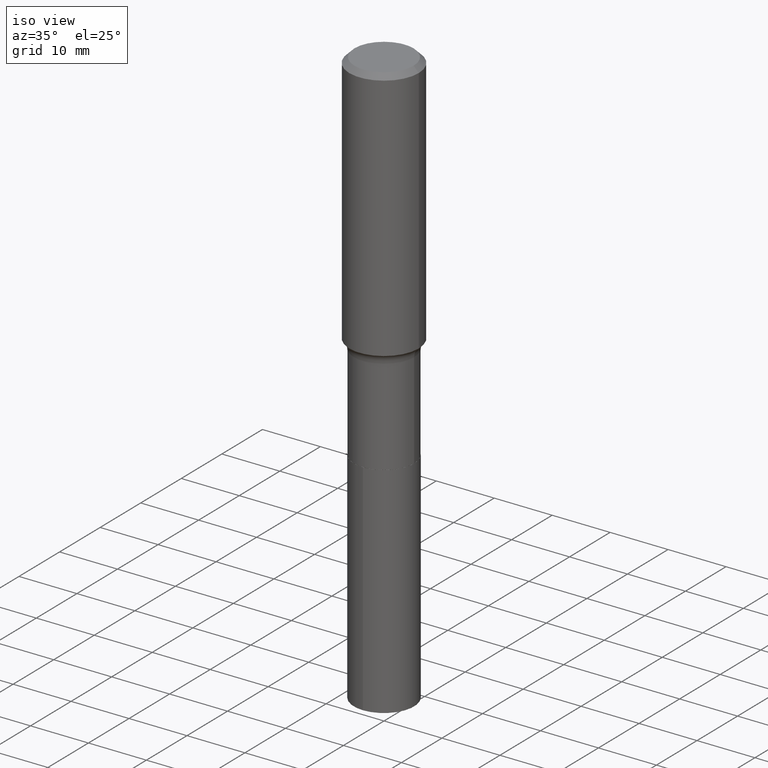
[diagram: clean part render]
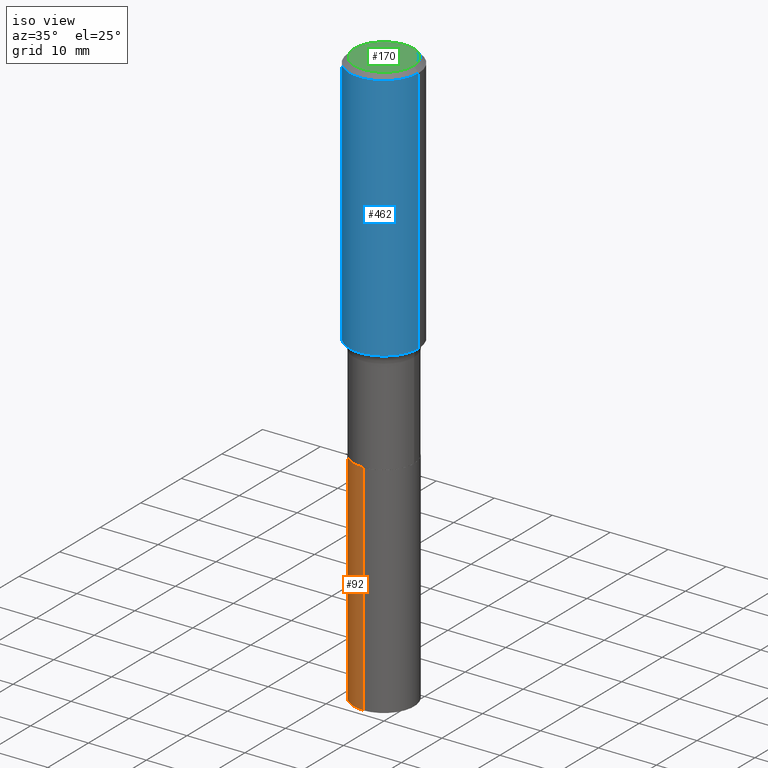
[diagram: same view with three faces highlighted in distinct colors, each labeled with its STEP entity id]
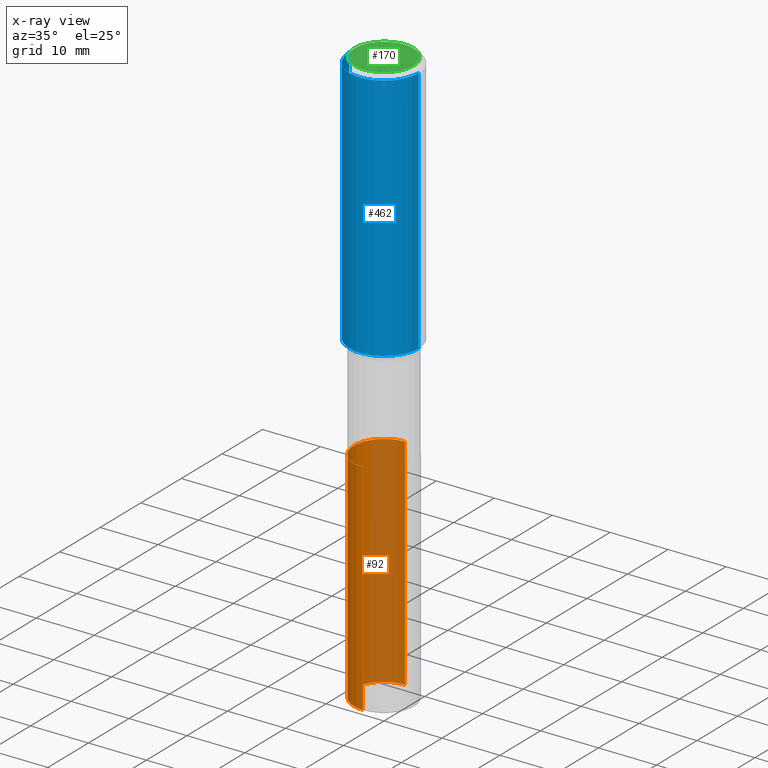
[diagram: x-ray of the same camera — body ghosted, the three highlighted faces saturated]
A machine part, iso view with three faces highlighted in distinct colors.
The next image is the same camera in x-ray (body ghosted, the three faces saturated) — at least one of them is partly hidden behind the body in this view.
Their STEP definitions:

[orange] entity #92 — the highlighted cylindrical surface (partial cylindrical patch) has radius 5.2006 mm, axis along (-0, 0, 1).
#10 = CYLINDRICAL_SURFACE ( 'NONE', #286, 0.2047499999999999876 ) ;
#92 = ADVANCED_FACE ( 'NONE', ( #193 ), #10, .T. ) ;
#108 = LINE ( 'NONE', #482, #192 ) ;
#109 = EDGE_LOOP ( 'NONE', ( #244, #119, #282, #407 ) ) ;
#119 = ORIENTED_EDGE ( 'NONE', *, *, #264, .T. ) ;
#123 = VERTEX_POINT ( 'NONE', #465 ) ;
#139 = LINE ( 'NONE', #201, #471 ) ;
#152 = DIRECTION ( 'NONE',  ( -2.445425754346182208E-29, 3.491542991526886614E-15, 1.000000000000000000 ) ) ;
#153 = CARTESIAN_POINT ( 'NONE',  ( 5.969144809017299038E-29, -8.522356799982232966E-15, -2.440900000000000070 ) ) ;
#154 = DIRECTION ( 'NONE',  ( -2.445425754346182208E-29, 3.491542991526886220E-15, 1.000000000000000000 ) ) ;
#186 = DIRECTION ( 'NONE',  ( -2.445425754346182208E-29, 3.491542991526886614E-15, 1.000000000000000000 ) ) ;
#192 = VECTOR ( 'NONE', #268, 39.37007874015748143 ) ;
#193 = FACE_OUTER_BOUND ( 'NONE', #109, .T. ) ;
#201 = CARTESIAN_POINT ( 'NONE',  ( 1.454836251468864404E-15, 0.2047499999999914388, -2.440900000000000514 ) ) ;
#244 = ORIENTED_EDGE ( 'NONE', *, *, #485, .F. ) ;
#251 = CARTESIAN_POINT ( 'NONE',  ( 5.969144809017299038E-29, -8.522356799982232966E-15, -2.440900000000000070 ) ) ;
#260 = CARTESIAN_POINT ( 'NONE',  ( -1.429761608256166261E-15, -0.2047500000000136156, -3.932975630260252320 ) ) ;
#264 = EDGE_CURVE ( 'NONE', #450, #427, #411, .T. ) ;
#268 = DIRECTION ( 'NONE',  ( -2.445425754346182208E-29, 3.491542991526886220E-15, 1.000000000000000000 ) ) ;
#276 = DIRECTION ( 'NONE',  ( -6.982962677686265922E-15, -1.000000000000000000, 2.668471788683041116E-15 ) ) ;
#279 = CARTESIAN_POINT ( 'NONE',  ( -1.429761608256203140E-15, -0.2047500000000085085, -2.440899999999999181 ) ) ;
#282 = ORIENTED_EDGE ( 'NONE', *, *, #474, .T. ) ;
#286 = AXIS2_PLACEMENT_3D ( 'NONE', #153, #304, #419 ) ;
#304 = DIRECTION ( 'NONE',  ( -2.445425754346182208E-29, 3.491542991526886614E-15, 1.000000000000000000 ) ) ;
#340 = CARTESIAN_POINT ( 'NONE',  ( 9.617904982688033762E-29, -1.373200300964548210E-14, -3.932975630260252764 ) ) ;
#370 = VERTEX_POINT ( 'NONE', #279 ) ;
#407 = ORIENTED_EDGE ( 'NONE', *, *, #423, .F. ) ;
#411 = CIRCLE ( 'NONE', #459, 0.2047499999999999876 ) ;
#419 = DIRECTION ( 'NONE',  ( -6.982962677686265922E-15, -1.000000000000000000, 4.002707683024561674E-15 ) ) ;
#423 = EDGE_CURVE ( 'NONE', #123, #370, #446, .T. ) ;
#427 = VERTEX_POINT ( 'NONE', #260 ) ;
#446 = CIRCLE ( 'NONE', #491, 0.2047499999999999876 ) ;
#450 = VERTEX_POINT ( 'NONE', #481 ) ;
#459 = AXIS2_PLACEMENT_3D ( 'NONE', #340, #152, #276 ) ;
#465 = CARTESIAN_POINT ( 'NONE',  ( 1.454836251468901086E-15, 0.2047499999999914388, -2.440900000000000514 ) ) ;
#471 = VECTOR ( 'NONE', #154, 39.37007874015748143 ) ;
#474 = EDGE_CURVE ( 'NONE', #427, #370, #108, .T. ) ;
#476 = DIRECTION ( 'NONE',  ( -6.982962677686265922E-15, -1.000000000000000000, 4.002707683024561674E-15 ) ) ;
#481 = CARTESIAN_POINT ( 'NONE',  ( 1.454836251468900297E-15, 0.2047499999999861930, -3.932975630260253208 ) ) ;
#482 = CARTESIAN_POINT ( 'NONE',  ( -1.429761608256203140E-15, -0.2047500000000085085, -2.440899999999999181 ) ) ;
#485 = EDGE_CURVE ( 'NONE', #450, #123, #139, .T. ) ;
#491 = AXIS2_PLACEMENT_3D ( 'NONE', #251, #186, #476 ) ;

[blue] entity #462 — the highlighted cylindrical surface (partial cylindrical patch) has radius 5.9995 mm, axis along (-0, 0, 1).
#11 = DIRECTION ( 'NONE',  ( -2.445468806185136597E-29, 3.491481338843145583E-15, 1.000000000000000000 ) ) ;
#13 = CIRCLE ( 'NONE', #124, 0.2362000000000002153 ) ;
#15 = EDGE_CURVE ( 'NONE', #164, #171, #13, .T. ) ;
#21 = EDGE_CURVE ( 'NONE', #171, #365, #413, .T. ) ;
#48 = CARTESIAN_POINT ( 'NONE',  ( -0.2362000000000001043, 1.678301941865357380E-15, -1.161852468318209317E-29 ) ) ;
#61 = ORIENTED_EDGE ( 'NONE', *, *, #21, .T. ) ;
#63 = VECTOR ( 'NONE', #292, 39.37007874015748143 ) ;
#66 = DIRECTION ( 'NONE',  ( 1.000000000000000000, -6.982962677686266711E-15, 0.000000000000000000 ) ) ;
#72 = CARTESIAN_POINT ( 'NONE',  ( 8.664295980313995239E-31, -1.237031838352134572E-16, -0.03543000000000023214 ) ) ;
#79 = CARTESIAN_POINT ( 'NONE',  ( 0.2362000000000002153, -7.676766387154458967E-15, -1.726313280162641517 ) ) ;
#86 = ORIENTED_EDGE ( 'NONE', *, *, #387, .F. ) ;
#100 = DIRECTION ( 'NONE',  ( 1.000000000000000000, -6.982962677686266711E-15, 4.876176775795935793E-29 ) ) ;
#124 = AXIS2_PLACEMENT_3D ( 'NONE', #331, #11, #66 ) ;
#164 = VERTEX_POINT ( 'NONE', #315 ) ;
#171 = VERTEX_POINT ( 'NONE', #79 ) ;
#182 = CARTESIAN_POINT ( 'NONE',  ( 0.2362000000000001043, -1.649375784469496920E-15, 1.151752954443000508E-29 ) ) ;
#240 = EDGE_LOOP ( 'NONE', ( #376, #281, #61, #86 ) ) ;
#281 = ORIENTED_EDGE ( 'NONE', *, *, #15, .T. ) ;
#287 = AXIS2_PLACEMENT_3D ( 'NONE', #454, #379, #100 ) ;
#292 = DIRECTION ( 'NONE',  ( -2.445468806185136877E-29, 3.491481338843145188E-15, 1.000000000000000000 ) ) ;
#298 = AXIS2_PLACEMENT_3D ( 'NONE', #72, #382, #343 ) ;
#303 = CYLINDRICAL_SURFACE ( 'NONE', #287, 0.2362000000000001043 ) ;
#315 = CARTESIAN_POINT ( 'NONE',  ( -0.2362000000000002153, -4.349088660819602892E-15, -1.726313280162641517 ) ) ;
#326 = EDGE_CURVE ( 'NONE', #164, #420, #391, .T. ) ;
#331 = CARTESIAN_POINT ( 'NONE',  ( 4.221645276340882114E-29, -6.027390602684960864E-15, -1.726313280162641517 ) ) ;
#339 = CIRCLE ( 'NONE', #298, 0.2361999999999999933 ) ;
#343 = DIRECTION ( 'NONE',  ( 1.000000000000000000, -6.982962677686266711E-15, 0.000000000000000000 ) ) ;
#353 = DIRECTION ( 'NONE',  ( -2.445468806185136877E-29, 3.491481338843145188E-15, 1.000000000000000000 ) ) ;
#365 = VERTEX_POINT ( 'NONE', #416 ) ;
#368 = FACE_OUTER_BOUND ( 'NONE', #240, .T. ) ;
#376 = ORIENTED_EDGE ( 'NONE', *, *, #326, .F. ) ;
#379 = DIRECTION ( 'NONE',  ( -2.445468806185136597E-29, 3.491481338843145583E-15, 1.000000000000000000 ) ) ;
#382 = DIRECTION ( 'NONE',  ( -2.445468806185136597E-29, 3.491481338843145583E-15, 1.000000000000000000 ) ) ;
#387 = EDGE_CURVE ( 'NONE', #420, #365, #339, .T. ) ;
#390 = VECTOR ( 'NONE', #353, 39.37007874015748143 ) ;
#391 = LINE ( 'NONE', #48, #390 ) ;
#413 = LINE ( 'NONE', #182, #63 ) ;
#416 = CARTESIAN_POINT ( 'NONE',  ( 0.2361999999999999933, -1.773078968304709514E-15, -0.03543000000000023214 ) ) ;
#420 = VERTEX_POINT ( 'NONE', #439 ) ;
#439 = CARTESIAN_POINT ( 'NONE',  ( -0.2361999999999999933, -1.397244951394729645E-15, -0.03543000000000023214 ) ) ;
#454 = CARTESIAN_POINT ( 'NONE',  ( 0.000000000000000000, 0.000000000000000000, 0.000000000000000000 ) ) ;
#462 = ADVANCED_FACE ( 'NONE', ( #368 ), #303, .T. ) ;

[green] entity #170 — the highlighted planar face has unit normal (0, -0, -1).
#29 = CIRCLE ( 'NONE', #202, 0.2007700000000000040 ) ;
#39 = CARTESIAN_POINT ( 'NONE',  ( 0.2007700000000000040, -1.560767496960719672E-15, 4.096137381458473721E-18 ) ) ;
#69 = CARTESIAN_POINT ( 'NONE',  ( -1.001697619218023151E-46, 1.430158722866391908E-32, 4.096137381448114529E-18 ) ) ;
#73 = CARTESIAN_POINT ( 'NONE',  ( -1.001697619218023151E-46, 1.430158722866391908E-32, 4.096137381448114529E-18 ) ) ;
#87 = FACE_OUTER_BOUND ( 'NONE', #178, .T. ) ;
#91 = VERTEX_POINT ( 'NONE', #39 ) ;
#118 = DIRECTION ( 'NONE',  ( -2.445468806185136597E-29, 3.491481338843145583E-15, 1.000000000000000000 ) ) ;
#144 = AXIS2_PLACEMENT_3D ( 'NONE', #69, #118, #220 ) ;
#160 = DIRECTION ( 'NONE',  ( -1.000000000000000000, 6.982962677686265922E-15, -4.876176775795935793E-29 ) ) ;
#170 = ADVANCED_FACE ( 'NONE', ( #87 ), #395, .F. ) ;
#178 = EDGE_LOOP ( 'NONE', ( #243, #318 ) ) ;
#202 = AXIS2_PLACEMENT_3D ( 'NONE', #73, #223, #385 ) ;
#220 = DIRECTION ( 'NONE',  ( 1.000000000000000000, -6.982962677686266711E-15, 4.876140833081945105E-29 ) ) ;
#223 = DIRECTION ( 'NONE',  ( -2.445468806185136597E-29, 3.491481338843145583E-15, 1.000000000000000000 ) ) ;
#235 = EDGE_CURVE ( 'NONE', #91, #406, #358, .T. ) ;
#243 = ORIENTED_EDGE ( 'NONE', *, *, #305, .T. ) ;
#274 = CARTESIAN_POINT ( 'NONE',  ( -5.008488096090115757E-47, 7.150793614331959538E-33, 2.048068690724057264E-18 ) ) ;
#296 = AXIS2_PLACEMENT_3D ( 'NONE', #274, #424, #160 ) ;
#305 = EDGE_CURVE ( 'NONE', #406, #91, #29, .T. ) ;
#318 = ORIENTED_EDGE ( 'NONE', *, *, #235, .T. ) ;
#358 = CIRCLE ( 'NONE', #144, 0.2007700000000000040 ) ;
#385 = DIRECTION ( 'NONE',  ( 1.000000000000000000, -6.982962677686266711E-15, 4.876140833081945105E-29 ) ) ;
#395 = PLANE ( 'NONE',  #296 ) ;
#406 = VERTEX_POINT ( 'NONE', #488 ) ;
#424 = DIRECTION ( 'NONE',  ( 2.438088387897960049E-29, -3.491481338843145188E-15, -1.000000000000000000 ) ) ;
#488 = CARTESIAN_POINT ( 'NONE',  ( -0.2007700000000000040, 1.463821008716677338E-15, 4.096137381438094301E-18 ) ) ;